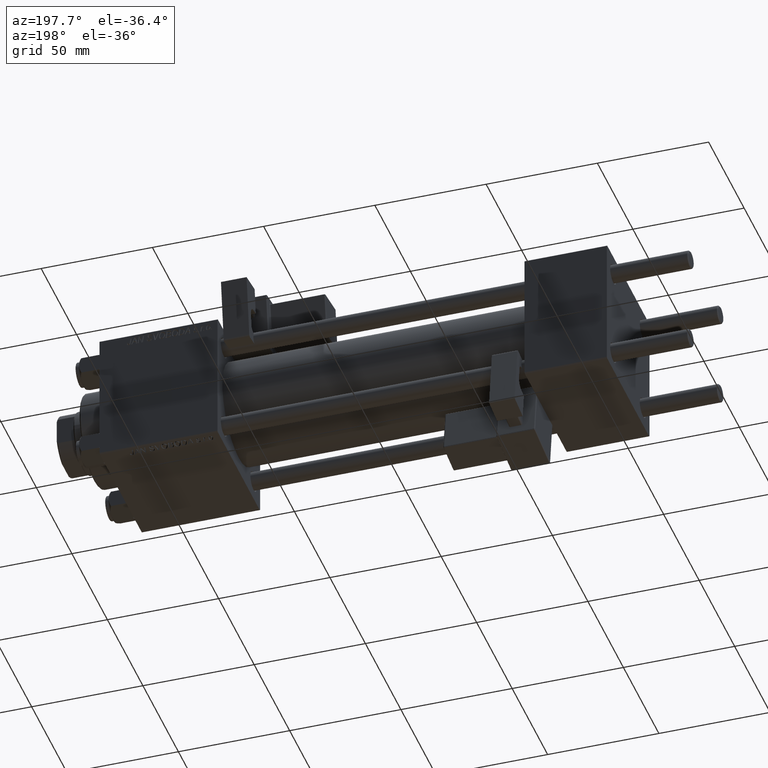
[diagram: clean part render]
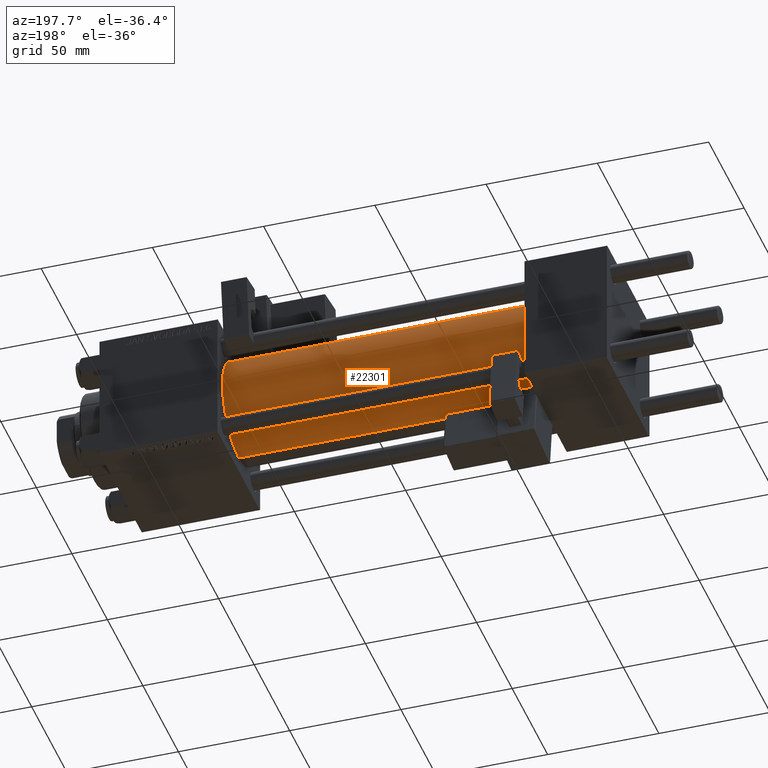
[diagram: same view with one face highlighted and labeled with its STEP entity id]
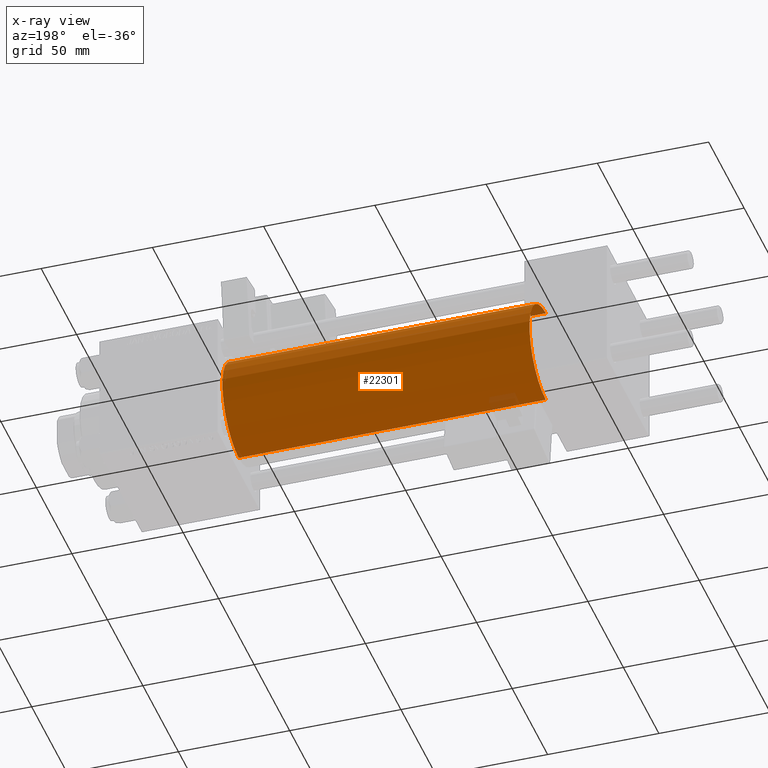
[diagram: x-ray of the same camera — body ghosted, the highlighted face saturated]
A machine part, auxiliary view. The second image highlights one B-rep face of the part: STEP entity #22301.
The next image is the same camera in x-ray: the body ghosted, the highlighted face saturated — about 1% of this face is hidden behind the body in this view.
In plain terms, the highlighted cylindrical surface (partial cylindrical patch) has radius 23 mm, axis along (-1, -0, -0).
Its self-contained STEP definition (entity closure, byte-faithful):
#10 = DIRECTION ( 'NONE',  ( 1.000000000000000000, 0.000000000000000000, 0.000000000000000000 ) ) ;
#702 = DIRECTION ( 'NONE',  ( 1.000000000000000000, -0.000000000000000000, 0.000000000000000000 ) ) ;
#3980 = LINE ( 'NONE', #32416, #46198 ) ;
#5310 = EDGE_LOOP ( 'NONE', ( #31579, #14203, #44006, #30598 ) ) ;
#7166 = CARTESIAN_POINT ( 'NONE',  ( 175.0000000000000284, 2.816687638038912352E-15, -23.00000000000000000 ) ) ;
#7985 = DIRECTION ( 'NONE',  ( -1.000000000000000000, -0.000000000000000000, -0.000000000000000000 ) ) ;
#14113 = DIRECTION ( 'NONE',  ( 0.000000000000000000, 0.000000000000000000, 1.000000000000000000 ) ) ;
#14203 = ORIENTED_EDGE ( 'NONE', *, *, #45904, .T. ) ;
#17286 = CARTESIAN_POINT ( 'NONE',  ( 37.00000000000000711, 2.816687638038912352E-15, -23.00000000000000000 ) ) ;
#21366 = LINE ( 'NONE', #34251, #38024 ) ;
#22137 = DIRECTION ( 'NONE',  ( -1.000000000000000000, -0.000000000000000000, -0.000000000000000000 ) ) ;
#22301 = ADVANCED_FACE ( 'NONE', ( #36427 ), #28025, .T. ) ;
#23409 = CARTESIAN_POINT ( 'NONE',  ( 37.00000000000000711, 0.000000000000000000, 23.00000000000000000 ) ) ;
#24030 = AXIS2_PLACEMENT_3D ( 'NONE', #36784, #702, #14113 ) ;
#24861 = CIRCLE ( 'NONE', #24030, 23.00000000000000000 ) ;
#26117 = EDGE_CURVE ( 'NONE', #37631, #38362, #21366, .T. ) ;
#26894 = CIRCLE ( 'NONE', #29389, 23.00000000000000000 ) ;
#28025 = CYLINDRICAL_SURFACE ( 'NONE', #43737, 23.00000000000000000 ) ;
#28450 = DIRECTION ( 'NONE',  ( 0.000000000000000000, 0.000000000000000000, -1.000000000000000000 ) ) ;
#29389 = AXIS2_PLACEMENT_3D ( 'NONE', #43728, #10, #28450 ) ;
#30598 = ORIENTED_EDGE ( 'NONE', *, *, #26117, .F. ) ;
#31579 = ORIENTED_EDGE ( 'NONE', *, *, #50150, .F. ) ;
#32078 = CARTESIAN_POINT ( 'NONE',  ( 175.0000000000000284, 0.000000000000000000, 23.00000000000000000 ) ) ;
#32163 = DIRECTION ( 'NONE',  ( -1.000000000000000000, -0.000000000000000000, -0.000000000000000000 ) ) ;
#32416 = CARTESIAN_POINT ( 'NONE',  ( 175.0000000000000284, 2.816687638038912352E-15, -23.00000000000000000 ) ) ;
#34251 = CARTESIAN_POINT ( 'NONE',  ( 175.0000000000000284, 0.000000000000000000, 23.00000000000000000 ) ) ;
#36427 = FACE_OUTER_BOUND ( 'NONE', #5310, .T. ) ;
#36784 = CARTESIAN_POINT ( 'NONE',  ( 37.00000000000000711, 0.000000000000000000, 0.000000000000000000 ) ) ;
#36938 = VERTEX_POINT ( 'NONE', #17286 ) ;
#37631 = VERTEX_POINT ( 'NONE', #32078 ) ;
#37682 = EDGE_CURVE ( 'NONE', #36938, #38362, #24861, .T. ) ;
#38024 = VECTOR ( 'NONE', #22137, 1000.000000000000000 ) ;
#38362 = VERTEX_POINT ( 'NONE', #23409 ) ;
#40128 = DIRECTION ( 'NONE',  ( 0.000000000000000000, 0.000000000000000000, 1.000000000000000000 ) ) ;
#43728 = CARTESIAN_POINT ( 'NONE',  ( 175.0000000000000284, 0.000000000000000000, 0.000000000000000000 ) ) ;
#43737 = AXIS2_PLACEMENT_3D ( 'NONE', #44075, #7985, #40128 ) ;
#44006 = ORIENTED_EDGE ( 'NONE', *, *, #37682, .T. ) ;
#44075 = CARTESIAN_POINT ( 'NONE',  ( 175.0000000000000284, 0.000000000000000000, 0.000000000000000000 ) ) ;
#45904 = EDGE_CURVE ( 'NONE', #48705, #36938, #3980, .T. ) ;
#46198 = VECTOR ( 'NONE', #32163, 1000.000000000000000 ) ;
#48705 = VERTEX_POINT ( 'NONE', #7166 ) ;
#50150 = EDGE_CURVE ( 'NONE', #48705, #37631, #26894, .T. ) ;